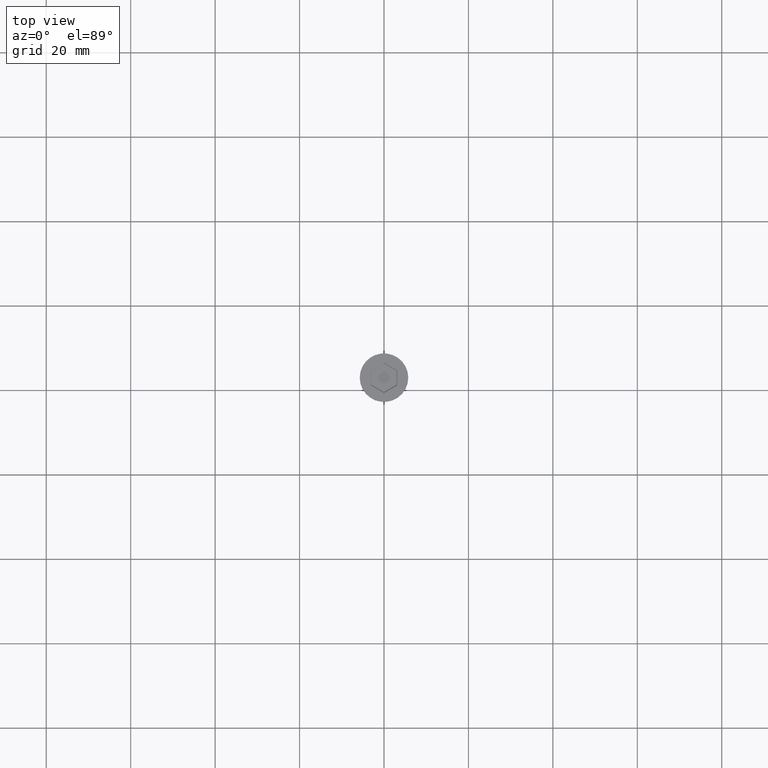
[diagram: clean part render]
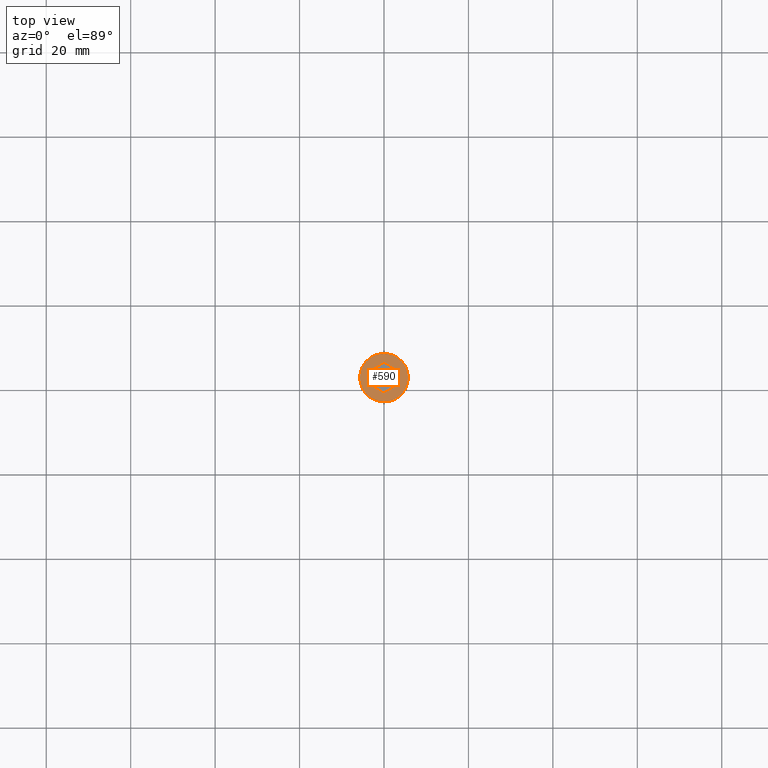
[diagram: same view with one face highlighted and labeled with its STEP entity id]
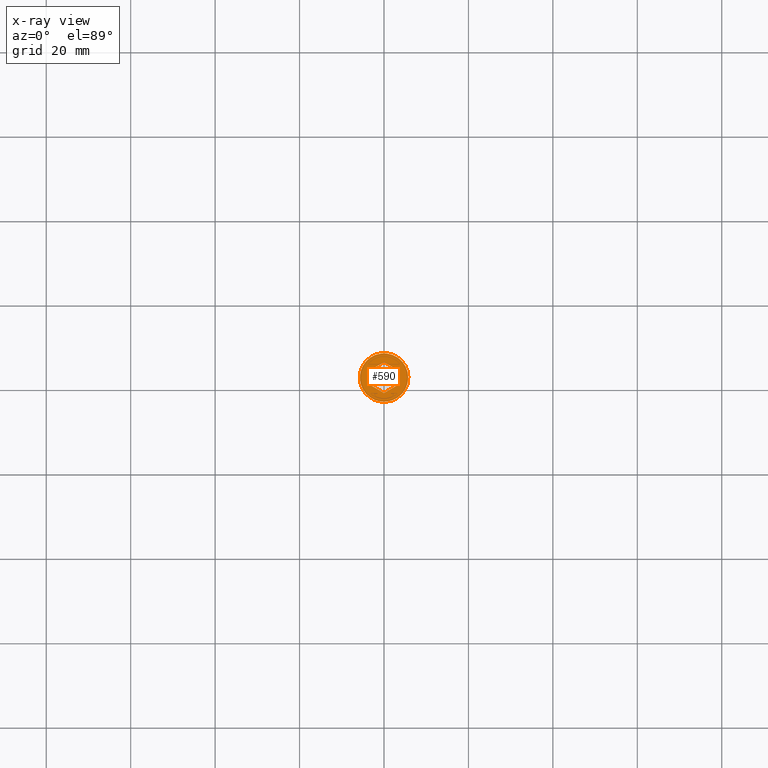
[diagram: x-ray of the same camera — body ghosted, the highlighted face saturated]
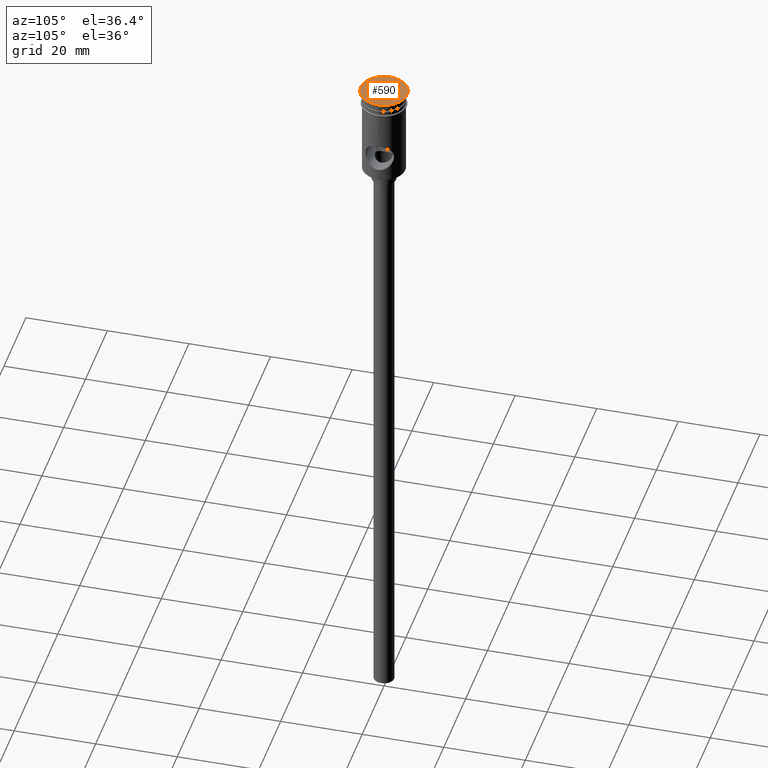
[diagram: same view with one face highlighted and labeled with its STEP entity id]
A machine part, top view. The second image highlights one B-rep face of the part: STEP entity #590.
The next image is the same camera in x-ray: the body ghosted, the highlighted face saturated — about 0% of this face is hidden behind the body in this view.
A second angle (auxiliary view) of the same face is appended — the face is thin or edge-on in the first view.
In plain terms, the highlighted planar face has unit normal (0, -0, 1).
Its self-contained STEP definition (entity closure, byte-faithful):
#37 = CIRCLE ( 'NONE', #1226, 5.750000000000000000 ) ;
#40 = EDGE_CURVE ( 'NONE', #49, #1070, #998, .T. ) ;
#49 = VERTEX_POINT ( 'NONE', #789 ) ;
#80 = DIRECTION ( 'NONE',  ( 0.000000000000000000, 1.000000000000000000, 0.000000000000000000 ) ) ;
#93 = DIRECTION ( 'NONE',  ( 0.8660254037844387076, -0.4999999999999998890, 0.000000000000000000 ) ) ;
#97 = CARTESIAN_POINT ( 'NONE',  ( -3.149999999999978595, 1.703183294109395840, 0.000000000000000000 ) ) ;
#103 = DIRECTION ( 'NONE',  ( -0.8660254037844385966, 0.5000000000000001110, 0.000000000000000000 ) ) ;
#119 = CARTESIAN_POINT ( 'NONE',  ( -0.09999999999998937517, 3.579571668975661147, 0.000000000000000000 ) ) ;
#120 = LINE ( 'NONE', #778, #1288 ) ;
#169 = ORIENTED_EDGE ( 'NONE', *, *, #1194, .T. ) ;
#188 = LINE ( 'NONE', #647, #1291 ) ;
#223 = DIRECTION ( 'NONE',  ( 0.8660254037844385966, 0.5000000000000001110, 0.000000000000000000 ) ) ;
#237 = DIRECTION ( 'NONE',  ( 1.000000000000000000, 0.000000000000000000, 0.000000000000000000 ) ) ;
#286 = ORIENTED_EDGE ( 'NONE', *, *, #368, .T. ) ;
#307 = DIRECTION ( 'NONE',  ( 0.000000000000000000, -0.000000000000000000, 1.000000000000000000 ) ) ;
#315 = PLANE ( 'NONE',  #1077 ) ;
#355 = ORIENTED_EDGE ( 'NONE', *, *, #1290, .T. ) ;
#361 = EDGE_CURVE ( 'NONE', #1175, #1088, #780, .T. ) ;
#368 = EDGE_CURVE ( 'NONE', #1319, #866, #680, .T. ) ;
#371 = DIRECTION ( 'NONE',  ( 1.000000000000000000, 0.000000000000000000, 0.000000000000000000 ) ) ;
#378 = DIRECTION ( 'NONE',  ( -0.000000000000000000, -0.000000000000000000, 1.000000000000000000 ) ) ;
#444 = VERTEX_POINT ( 'NONE', #835 ) ;
#466 = VECTOR ( 'NONE', #80, 1000.000000000000000 ) ;
#481 = ORIENTED_EDGE ( 'NONE', *, *, #40, .T. ) ;
#546 = DIRECTION ( 'NONE',  ( -0.000000000000000000, -0.000000000000000000, 1.000000000000000000 ) ) ;
#590 = ADVANCED_FACE ( 'NONE', ( #745, #1432 ), #315, .T. ) ;
#598 = CARTESIAN_POINT ( 'NONE',  ( 5.750000000000000000, 0.000000000000000000, 0.000000000000000000 ) ) ;
#637 = LINE ( 'NONE', #1311, #1314 ) ;
#647 = CARTESIAN_POINT ( 'NONE',  ( 3.049999999999990052, 1.876388374866264863, 0.000000000000000000 ) ) ;
#662 = CARTESIAN_POINT ( 'NONE',  ( -3.149999999999978595, -1.818653347947308818, 0.000000000000000000 ) ) ;
#678 = DIRECTION ( 'NONE',  ( -0.8660254037844387076, -0.4999999999999998890, 0.000000000000000000 ) ) ;
#680 = CIRCLE ( 'NONE', #1046, 5.750000000000000000 ) ;
#684 = CARTESIAN_POINT ( 'NONE',  ( 0.09999999999998870903, -3.579571668975661591, 0.000000000000000000 ) ) ;
#688 = CARTESIAN_POINT ( 'NONE',  ( 0.000000000000000000, 0.000000000000000000, 0.000000000000000000 ) ) ;
#745 = FACE_BOUND ( 'NONE', #1423, .T. ) ;
#770 = EDGE_CURVE ( 'NONE', #1070, #1175, #120, .T. ) ;
#778 = CARTESIAN_POINT ( 'NONE',  ( -3.049999999999989608, -1.876388374866265085, 0.000000000000000000 ) ) ;
#780 = LINE ( 'NONE', #97, #466 ) ;
#789 = CARTESIAN_POINT ( 'NONE',  ( 3.149999999999978151, -1.818653347947309262, 0.000000000000000000 ) ) ;
#832 = ORIENTED_EDGE ( 'NONE', *, *, #1001, .T. ) ;
#833 = EDGE_LOOP ( 'NONE', ( #355, #286 ) ) ;
#835 = CARTESIAN_POINT ( 'NONE',  ( -3.163467028841980443E-16, 3.637306695894617192, 0.000000000000000000 ) ) ;
#855 = CARTESIAN_POINT ( 'NONE',  ( 0.000000000000000000, 0.000000000000000000, 0.000000000000000000 ) ) ;
#866 = VERTEX_POINT ( 'NONE', #598 ) ;
#951 = VERTEX_POINT ( 'NONE', #1168 ) ;
#998 = LINE ( 'NONE', #684, #1045 ) ;
#1001 = EDGE_CURVE ( 'NONE', #951, #49, #637, .T. ) ;
#1010 = VECTOR ( 'NONE', #223, 1000.000000000000114 ) ;
#1030 = CARTESIAN_POINT ( 'NONE',  ( 0.000000000000000000, 0.000000000000000000, 0.000000000000000000 ) ) ;
#1045 = VECTOR ( 'NONE', #678, 1000.000000000000000 ) ;
#1046 = AXIS2_PLACEMENT_3D ( 'NONE', #1030, #546, #237 ) ;
#1070 = VERTEX_POINT ( 'NONE', #1083 ) ;
#1077 = AXIS2_PLACEMENT_3D ( 'NONE', #855, #307, #1304 ) ;
#1083 = CARTESIAN_POINT ( 'NONE',  ( -5.257856505504653693E-16, -3.637306695894617636, 0.000000000000000000 ) ) ;
#1088 = VERTEX_POINT ( 'NONE', #1205 ) ;
#1092 = EDGE_CURVE ( 'NONE', #444, #951, #188, .T. ) ;
#1133 = LINE ( 'NONE', #119, #1010 ) ;
#1168 = CARTESIAN_POINT ( 'NONE',  ( 3.149999999999979039, 1.818653347947308596, 0.000000000000000000 ) ) ;
#1175 = VERTEX_POINT ( 'NONE', #662 ) ;
#1178 = ORIENTED_EDGE ( 'NONE', *, *, #770, .T. ) ;
#1194 = EDGE_CURVE ( 'NONE', #1088, #444, #1133, .T. ) ;
#1205 = CARTESIAN_POINT ( 'NONE',  ( -3.149999999999978595, 1.818653347947308374, 0.000000000000000000 ) ) ;
#1212 = ORIENTED_EDGE ( 'NONE', *, *, #361, .T. ) ;
#1226 = AXIS2_PLACEMENT_3D ( 'NONE', #688, #378, #371 ) ;
#1273 = CARTESIAN_POINT ( 'NONE',  ( -5.750000000000000000, 7.041719095097280880E-16, 0.000000000000000000 ) ) ;
#1288 = VECTOR ( 'NONE', #103, 1000.000000000000114 ) ;
#1290 = EDGE_CURVE ( 'NONE', #866, #1319, #37, .T. ) ;
#1291 = VECTOR ( 'NONE', #93, 1000.000000000000000 ) ;
#1304 = DIRECTION ( 'NONE',  ( 1.000000000000000000, 0.000000000000000000, 0.000000000000000000 ) ) ;
#1311 = CARTESIAN_POINT ( 'NONE',  ( 3.149999999999978151, -1.703183294109396284, 0.000000000000000000 ) ) ;
#1314 = VECTOR ( 'NONE', #1417, 1000.000000000000000 ) ;
#1319 = VERTEX_POINT ( 'NONE', #1273 ) ;
#1320 = ORIENTED_EDGE ( 'NONE', *, *, #1092, .T. ) ;
#1417 = DIRECTION ( 'NONE',  ( -2.546295930062981593E-16, -1.000000000000000000, 0.000000000000000000 ) ) ;
#1423 = EDGE_LOOP ( 'NONE', ( #1178, #1212, #169, #1320, #832, #481 ) ) ;
#1432 = FACE_OUTER_BOUND ( 'NONE', #833, .T. ) ;